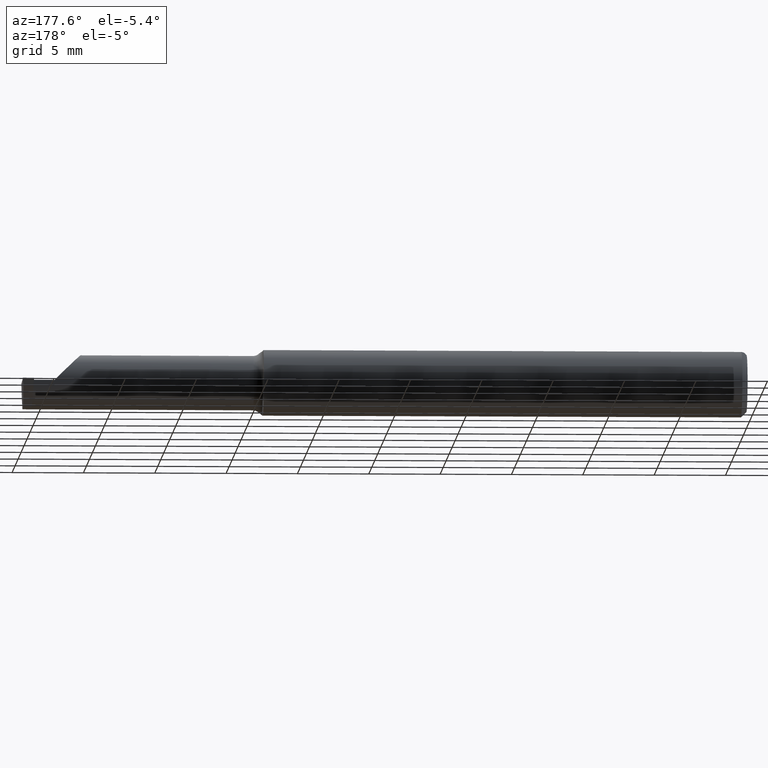
[diagram: clean part render]
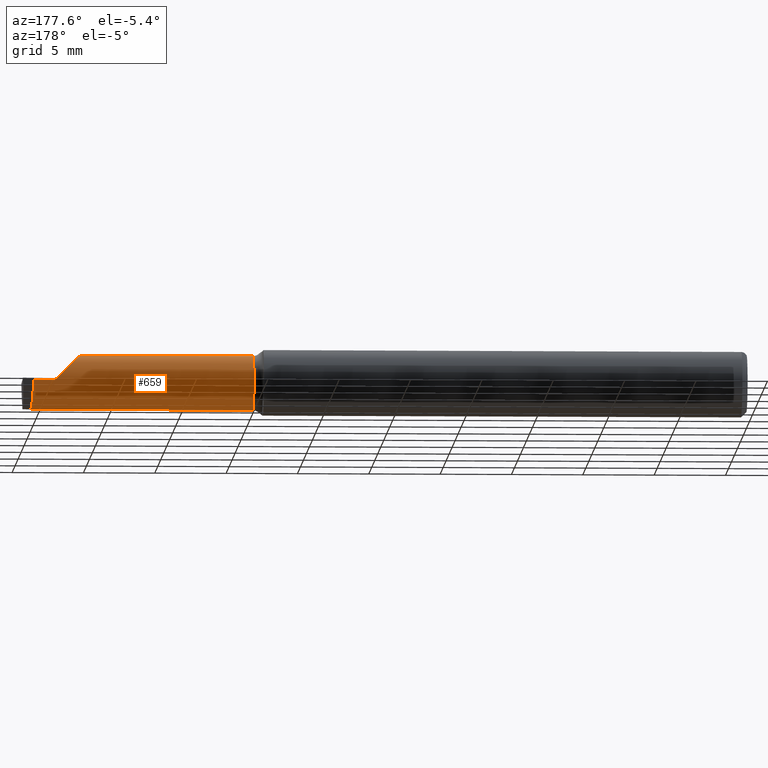
[diagram: same view with one face highlighted and labeled with its STEP entity id]
A machine part, auxiliary view. The second image highlights one B-rep face of the part: STEP entity #659.
In plain terms, the highlighted cylindrical surface (edge-blend (fillet) strip) has radius 1.905 mm, axis along (-1, -0, -0).
Its self-contained STEP definition (entity closure, byte-faithful):
#9 = CARTESIAN_POINT ( 'NONE',  ( 1.970284083932823727, 0.02994487577554294511, -0.01903262984222201318 ) ) ;
#10 = DIRECTION ( 'NONE',  ( -1.000000000000000000, -0.000000000000000000, -0.000000000000000000 ) ) ;
#21 = CARTESIAN_POINT ( 'NONE',  ( 1.969499999999999806, 0.03239999167003616148, -3.534818988850973635E-05 ) ) ;
#22 = EDGE_CURVE ( 'NONE', #152, #436, #742, .T. ) ;
#39 = VECTOR ( 'NONE', #649, 39.37007874015748143 ) ;
#41 = CARTESIAN_POINT ( 'NONE',  ( 1.969499999999999806, 0.03239999167003616148, -3.534818988850973635E-05 ) ) ;
#53 = VERTEX_POINT ( 'NONE', #435 ) ;
#64 = EDGE_CURVE ( 'NONE', #746, #152, #71, .T. ) ;
#71 =( BOUNDED_CURVE ( )  B_SPLINE_CURVE ( 3, ( #135, #603, #265, #606 ),
 .UNSPECIFIED., .F., .F. ) 
 B_SPLINE_CURVE_WITH_KNOTS ( ( 4, 4 ),
 ( 3.140983202202990654, 4.455205321888862535 ),
 .UNSPECIFIED. ) 
 CURVE ( )  GEOMETRIC_REPRESENTATION_ITEM ( )  RATIONAL_B_SPLINE_CURVE ( ( 1.000000000000000000, 0.8611734602017913076, 0.8611734602017913076, 1.000000000000000000 ) ) 
 REPRESENTATION_ITEM ( '' )  );
#79 = LINE ( 'NONE', #187, #124 ) ;
#83 = DIRECTION ( 'NONE',  ( 0.000000000000000000, 0.000000000000000000, 1.000000000000000000 ) ) ;
#119 = ORIENTED_EDGE ( 'NONE', *, *, #22, .F. ) ;
#124 = VECTOR ( 'NONE', #315, 39.37007874015748143 ) ;
#128 =( BOUNDED_CURVE ( )  B_SPLINE_CURVE ( 3, ( #762, #331, #513, #757 ),
 .UNSPECIFIED., .F., .F. ) 
 B_SPLINE_CURVE_WITH_KNOTS ( ( 4, 4 ),
 ( 0.000000000000000000, 1.570796326794896558 ),
 .UNSPECIFIED. ) 
 CURVE ( )  GEOMETRIC_REPRESENTATION_ITEM ( )  RATIONAL_B_SPLINE_CURVE ( ( 1.000000000000000000, 0.8047378541243649375, 0.8047378541243649375, 1.000000000000000000 ) ) 
 REPRESENTATION_ITEM ( '' )  );
#135 = CARTESIAN_POINT ( 'NONE',  ( 1.973213402547462803, -0.04260000000000001286, -0.07499999999999998335 ) ) ;
#136 = ORIENTED_EDGE ( 'NONE', *, *, #726, .T. ) ;
#152 = VERTEX_POINT ( 'NONE', #519 ) ;
#182 = LINE ( 'NONE', #704, #39 ) ;
#187 = CARTESIAN_POINT ( 'NONE',  ( 1.334999999999999742, -0.04259999999999997816, -0.07499999999999999722 ) ) ;
#191 = CARTESIAN_POINT ( 'NONE',  ( 1.334999999999999742, -0.04259999999999998510, 0.000000000000000000 ) ) ;
#192 = VECTOR ( 'NONE', #478, 39.37007874015748143 ) ;
#235 = LINE ( 'NONE', #474, #192 ) ;
#247 = ORIENTED_EDGE ( 'NONE', *, *, #368, .F. ) ;
#253 = FACE_OUTER_BOUND ( 'NONE', #351, .T. ) ;
#265 = CARTESIAN_POINT ( 'NONE',  ( 1.972080687037212510, 0.02094495418688687230, -0.05333678008583635916 ) ) ;
#302 = ORIENTED_EDGE ( 'NONE', *, *, #448, .T. ) ;
#315 = DIRECTION ( 'NONE',  ( -1.000000000000000000, -0.000000000000000000, -0.000000000000000000 ) ) ;
#317 = ORIENTED_EDGE ( 'NONE', *, *, #552, .F. ) ;
#318 = CARTESIAN_POINT ( 'NONE',  ( 1.973213402547462803, -0.04260000000000001286, -0.07499999999999998335 ) ) ;
#327 = EDGE_CURVE ( 'NONE', #698, #407, #182, .T. ) ;
#331 = CARTESIAN_POINT ( 'NONE',  ( 1.835000000000000187, 0.001333982822017879596, 0.07499999999999998335 ) ) ;
#334 = AXIS2_PLACEMENT_3D ( 'NONE', #191, #503, #608 ) ;
#351 = EDGE_LOOP ( 'NONE', ( #586, #136, #317, #247, #302, #464, #674, #119 ) ) ;
#362 = VERTEX_POINT ( 'NONE', #588 ) ;
#368 = EDGE_CURVE ( 'NONE', #53, #362, #235, .T. ) ;
#379 = CARTESIAN_POINT ( 'NONE',  ( 1.910000000000000142, 0.03240000000000002600, 1.102182119232621301E-17 ) ) ;
#407 = VERTEX_POINT ( 'NONE', #581 ) ;
#420 = CARTESIAN_POINT ( 'NONE',  ( 1.359999999999999654, -0.04259999999999997122, -0.07499999999999999722 ) ) ;
#435 = CARTESIAN_POINT ( 'NONE',  ( 1.835000000000000409, -0.04259999999999998510, 0.07499999999999999722 ) ) ;
#436 = VERTEX_POINT ( 'NONE', #41 ) ;
#448 = EDGE_CURVE ( 'NONE', #53, #698, #128, .T. ) ;
#464 = ORIENTED_EDGE ( 'NONE', *, *, #327, .T. ) ;
#473 = DIRECTION ( 'NONE',  ( -1.000000000000000000, -0.000000000000000000, -0.000000000000000000 ) ) ;
#474 = CARTESIAN_POINT ( 'NONE',  ( 1.334999999999999742, -0.04259999999999998510, 0.07499999999999999722 ) ) ;
#476 = CIRCLE ( 'NONE', #703, 0.07499999999999999722 ) ;
#478 = DIRECTION ( 'NONE',  ( -1.000000000000000000, -0.000000000000000000, -0.000000000000000000 ) ) ;
#490 = CARTESIAN_POINT ( 'NONE',  ( 1.970027797685394821, 0.03157410243558826657, -0.01282266061342995228 ) ) ;
#503 = DIRECTION ( 'NONE',  ( -1.000000000000000000, -0.000000000000000000, -0.000000000000000000 ) ) ;
#513 = CARTESIAN_POINT ( 'NONE',  ( 1.866066017177982594, 0.03240000000000000518, 0.04393398282201787380 ) ) ;
#519 = CARTESIAN_POINT ( 'NONE',  ( 1.970284083932823727, 0.02994487577554294511, -0.01903262984222201318 ) ) ;
#552 = EDGE_CURVE ( 'NONE', #362, #558, #695, .T. ) ;
#558 = VERTEX_POINT ( 'NONE', #420 ) ;
#559 = CYLINDRICAL_SURFACE ( 'NONE', #334, 0.07499999999999999722 ) ;
#581 = CARTESIAN_POINT ( 'NONE',  ( 1.969499999999999806, 0.03240000000000001212, 8.143897995945821622E-17 ) ) ;
#586 = ORIENTED_EDGE ( 'NONE', *, *, #64, .F. ) ;
#588 = CARTESIAN_POINT ( 'NONE',  ( 1.359999999999999654, -0.04259999999999997816, 0.07499999999999999722 ) ) ;
#597 = AXIS2_PLACEMENT_3D ( 'NONE', #651, #473, #600 ) ;
#600 = DIRECTION ( 'NONE',  ( 0.000000000000000000, 0.000000000000000000, 1.000000000000000000 ) ) ;
#603 = CARTESIAN_POINT ( 'NONE',  ( 1.973214534726833724, -0.007134900077140332759, -0.07499999999999999722 ) ) ;
#606 = CARTESIAN_POINT ( 'NONE',  ( 1.970284083932823727, 0.02994487577554294511, -0.01903262984222201318 ) ) ;
#608 = DIRECTION ( 'NONE',  ( 0.000000000000000000, 0.000000000000000000, 1.000000000000000000 ) ) ;
#649 = DIRECTION ( 'NONE',  ( 1.000000000000000000, 0.000000000000000000, 0.000000000000000000 ) ) ;
#651 = CARTESIAN_POINT ( 'NONE',  ( 1.359999999999999654, -0.04259999999999998510, 0.000000000000000000 ) ) ;
#659 = ADVANCED_FACE ( 'NONE', ( #253 ), #559, .T. ) ;
#671 = CARTESIAN_POINT ( 'NONE',  ( 1.969499999999999806, -0.04259999999999998510, 0.000000000000000000 ) ) ;
#672 = CARTESIAN_POINT ( 'NONE',  ( 1.969765001967077156, 0.03239696580267937415, -0.006455479666460818902 ) ) ;
#674 = ORIENTED_EDGE ( 'NONE', *, *, #697, .T. ) ;
#695 = CIRCLE ( 'NONE', #597, 0.07499999999999999722 ) ;
#697 = EDGE_CURVE ( 'NONE', #407, #436, #476, .T. ) ;
#698 = VERTEX_POINT ( 'NONE', #379 ) ;
#703 = AXIS2_PLACEMENT_3D ( 'NONE', #671, #10, #83 ) ;
#704 = CARTESIAN_POINT ( 'NONE',  ( 1.334999999999999742, 0.03240000000000000518, 8.143901214329938727E-17 ) ) ;
#726 = EDGE_CURVE ( 'NONE', #746, #558, #79, .T. ) ;
#742 =( BOUNDED_CURVE ( )  B_SPLINE_CURVE ( 3, ( #9, #490, #672, #21 ),
 .UNSPECIFIED., .F., .T. ) 
 B_SPLINE_CURVE_WITH_KNOTS ( ( 4, 4 ),
 ( 4.455205321888866088, 4.711308219781928486 ),
 .UNSPECIFIED. ) 
 CURVE ( )  GEOMETRIC_REPRESENTATION_ITEM ( )  RATIONAL_B_SPLINE_CURVE ( ( 1.000000000000000000, 0.9945417399294781413, 0.9945417399294781413, 1.000000000000000000 ) ) 
 REPRESENTATION_ITEM ( '' )  );
#746 = VERTEX_POINT ( 'NONE', #318 ) ;
#757 = CARTESIAN_POINT ( 'NONE',  ( 1.910000000000000142, 0.03240000000000002600, 1.102182119232621301E-17 ) ) ;
#762 = CARTESIAN_POINT ( 'NONE',  ( 1.835000000000000409, -0.04259999999999998510, 0.07499999999999999722 ) ) ;